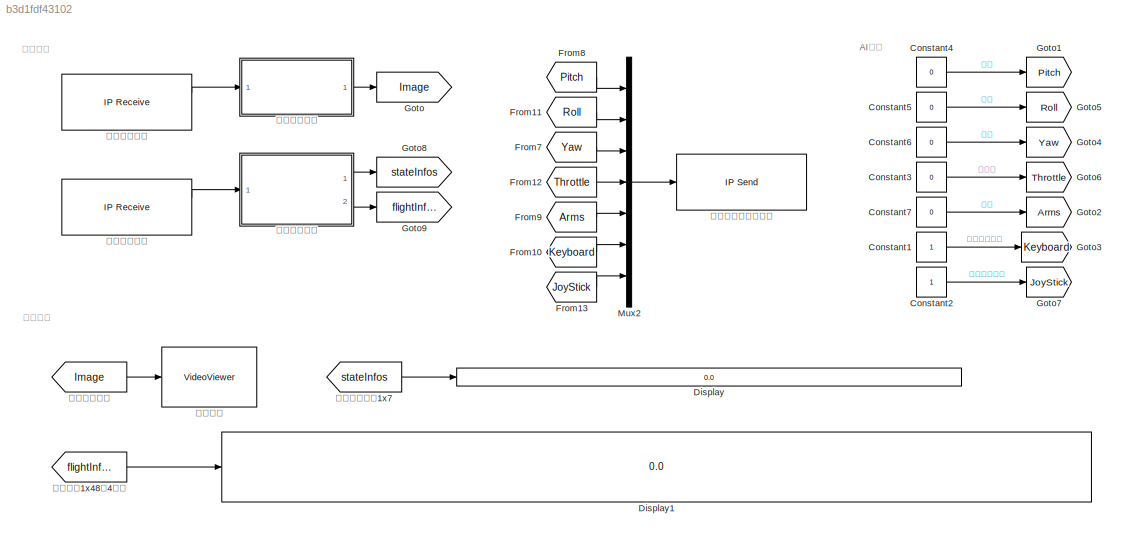
MODEL slx_b3d1fdf43102
KIND model
CONFIG AbsTol = auto
CONFIG EnableMultiTasking = off
CONFIG FixedStep = 1
CONFIG MaxStep = auto
CONFIG MinStep = auto
CONFIG RelTol = 1e-3
CONFIG SampleTimeConstraint = Unconstrained
CONFIG SolverName = ode45
CONFIG StartTime = 0.0
CONFIG StopTime = inf
BLOCK [Constant] Constant1
  OutDataTypeStr = int32
BLOCK [Constant] Constant2
  OutDataTypeStr = int32
BLOCK [Constant] Constant3
  OutDataTypeStr = int32
  Value = 0
BLOCK [Constant] Constant4
  OutDataTypeStr = int32
  Value = 0
BLOCK [Constant] Constant5
  OutDataTypeStr = int32
  Value = 0
BLOCK [Constant] Constant6
  OutDataTypeStr = int32
  Value = 0
BLOCK [Constant] Constant7
  OutDataTypeStr = int32
  Value = 0
BLOCK [Display] Display
  Decimation = 1
  Ports = [1]
BLOCK [Display] Display1
  Decimation = 1
  Ports = [1]
BLOCK [From] From10
  GotoTag = Keyboard
BLOCK [From] From11
  GotoTag = Roll
BLOCK [From] From12
  GotoTag = Throttle
BLOCK [From] From13
  GotoTag = JoyStick
BLOCK [From] From7
  GotoTag = Yaw
BLOCK [From] From8
  GotoTag = Pitch
BLOCK [From] From9
  GotoTag = Arms
BLOCK [Goto] Goto
  GotoTag = Image
BLOCK [Goto] Goto1
  GotoTag = Pitch
BLOCK [Goto] Goto2
  GotoTag = Arms
BLOCK [Goto] Goto3
  GotoTag = Keyboard
BLOCK [Goto] Goto4
  GotoTag = Yaw
BLOCK [Goto] Goto5
  GotoTag = Roll
BLOCK [Goto] Goto6
  GotoTag = Throttle
BLOCK [Goto] Goto7
  GotoTag = JoyStick
BLOCK [Goto] Goto8
  GotoTag = stateInfos
BLOCK [Goto] Goto9
  GotoTag = flightInfos
BLOCK [Mux] Mux2
  DisplayOption = bar
  Inputs = 7
  Ports = [7, 1]
BLOCK [From] 全景图片数据
  GotoTag = Image
BLOCK [VideoViewer] 图片展示
  FigPos = [-99 1250 1920 937]
  Ports = [1]
  ScopeSpecificationString = vipscopes.VideoViewerScopeCfg('CurrentConfiguration', extmgr.ConfigurationSet(extmgr.Configuration('Core','General UI',true),extmgr.Configuration('Core','Source UI',true),extmgr.Configuration('Sources','WiredSimulink',true,'LockSynchronous',true),extmgr.Configuration('Sources','Simulink',false),extmgr.Configuration('Sources','File',false),extmgr.Configuration('Sources','Workspace',false),extmgr.Co...<+991ch>
  colormapValue = gray(256)
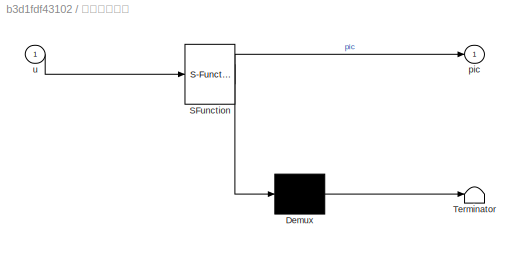
BLOCK [SubSystem] 图片数据转换
  ErrorFcn = Stateflow.Translate.translate
  PermitHierarchicalResolution = ExplicitOnly
  Ports = [1, 1]
  RequestExecContextInheritance = off
  SFBlockType = MATLAB Function
  TreatAsAtomicUnit = on
BLOCK [Demux] 图片数据转换/ Demux 
  Outputs = 1
  Ports = [1, 1]
BLOCK [S-Function] 图片数据转换/ SFunction 
  EnableBusSupport = on
  FunctionName = sf_sfun
  PortCounts = [1 2]
  Ports = [1, 2]
  SFcnIsStateOwnerBlock = off
  SFunctionDeploymentMode = off
  Tag = Stateflow S-Function 1
BLOCK [Terminator] 图片数据转换/ Terminator 
BLOCK [Outport] 图片数据转换/pic
BLOCK [Inport] 图片数据转换/u
BLOCK [Reference] 战场图片接收  REF=instrumentlib/TCP//IP Receive
  Ports = [0, 2]
  SourceBlock = instrumentlib/TCP//IP Receive
  SourceProductBaseCode = IC
  SourceType = TCP/IP Receive
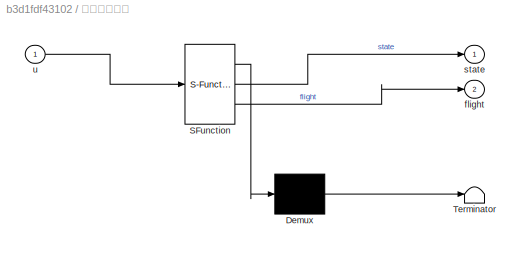
BLOCK [SubSystem] 战场数据拆分
  ErrorFcn = Stateflow.Translate.translate
  PermitHierarchicalResolution = ExplicitOnly
  Ports = [1, 2]
  RequestExecContextInheritance = off
  SFBlockType = MATLAB Function
  TreatAsAtomicUnit = on
BLOCK [Demux] 战场数据拆分/ Demux 
  Outputs = 1
  Ports = [1, 1]
BLOCK [S-Function] 战场数据拆分/ SFunction 
  EnableBusSupport = on
  FunctionName = sf_sfun
  PortCounts = [1 3]
  Ports = [1, 3]
  SFcnIsStateOwnerBlock = off
  SFunctionDeploymentMode = off
  Tag = Stateflow S-Function 2
BLOCK [Terminator] 战场数据拆分/ Terminator 
BLOCK [Outport] 战场数据拆分/flight
  Port = 2
BLOCK [Outport] 战场数据拆分/state
BLOCK [Inport] 战场数据拆分/u
BLOCK [Reference] 战场数据接收  REF=instrumentlib/TCP//IP Receive
  Ports = [0, 2]
  SourceBlock = instrumentlib/TCP//IP Receive
  SourceProductBaseCode = IC
  SourceType = TCP/IP Receive
BLOCK [From] 战局信息数据1x7
  GotoTag = stateInfos
BLOCK [Reference] 指令发送（小端法）  REF=instrumentlib/TCP//IP Send
  Ports = [1]
  SourceBlock = instrumentlib/TCP//IP Send
  SourceProductBaseCode = IC
  SourceType = TCP/IP Send
BLOCK [From] 飞机数据1x48（4组）
  GotoTag = flightInfos
ANNOTATION (root): AI处理
ANNOTATION (root): 可用数据
ANNOTATION (root): 数据收发
LINE Constant1:1 -> Goto3:1
LINE Constant2:1 -> Goto7:1
LINE Constant3:1 -> Goto6:1
LINE Constant4:1 -> Goto1:1
LINE Constant5:1 -> Goto5:1
LINE Constant6:1 -> Goto4:1
LINE Constant7:1 -> Goto2:1
LINE From10:1 -> Mux2:6
LINE From11:1 -> Mux2:2
LINE From12:1 -> Mux2:4
LINE From13:1 -> Mux2:7
LINE From7:1 -> Mux2:3
LINE From8:1 -> Mux2:1
LINE From9:1 -> Mux2:5
LINE Mux2:1 -> 指令发送（小端法）:1
LINE 全景图片数据:1 -> 图片展示:1
LINE 图片数据转换:1 -> Goto:1
LINE 战场图片接收:1 -> 图片数据转换:1
LINE 战场数据拆分:1 -> Goto8:1
LINE 战场数据拆分:2 -> Goto9:1
LINE 战场数据接收:1 -> 战场数据拆分:1
LINE 战局信息数据1x7:1 -> Display:1
LINE 飞机数据1x48（4组）:1 -> Display1:1
CHART 战场数据拆分 states=1 transitions=1
  STATE_LABEL 'eML_blk_kernel()'
  STATE_LABEL 'SCRIPT:\nfunction [state,flight] = fcn(u)\nstate = u(1:7);\nflight = u(8:end);\n'
CHART 图片数据转换 states=1 transitions=1
  STATE_LABEL 'eML_blk_kernel()'
  STATE_LABEL "SCRIPT:\nfunction pic = fcn(u)\ncoder.extrinsic('image');\ncol = 1024;\nrow = 512;\ntemp = 1;\nI = zeros(row, col, 3);\nfor i=1:row\n    for j=1:col\n        I(513 - i,j,1)=u(temp);\n        I(513 - i,j,2)=u(temp+1);\n        I(513 - i,j,3)=u(temp+2);\n        temp = temp + 3;\n    end\nend\npic = double(I)/255;\n\n"
CHART  states=0 transitions=0
CHART  states=0 transitions=0
